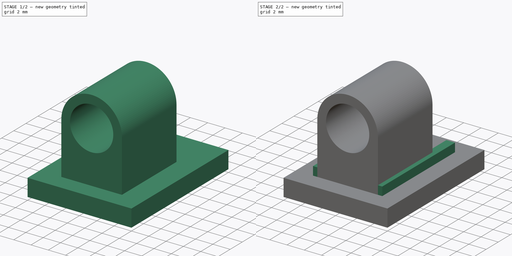
[diagram: build sequence overview — one tinted view per stage of 2, left to right]
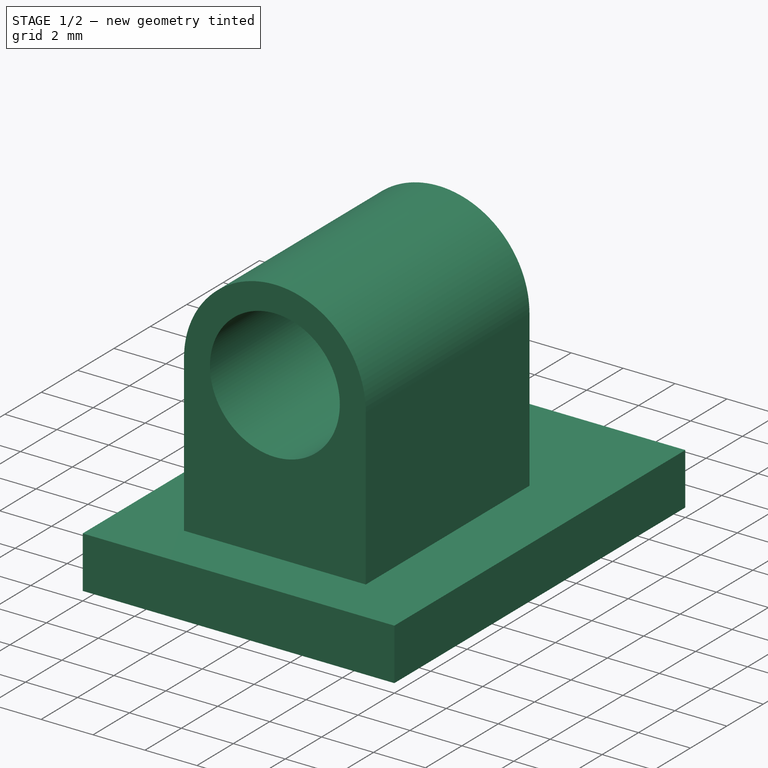
[diagram: stage 1 of 2 — iso view after this stage's code; geometry added in this stage tinted green]
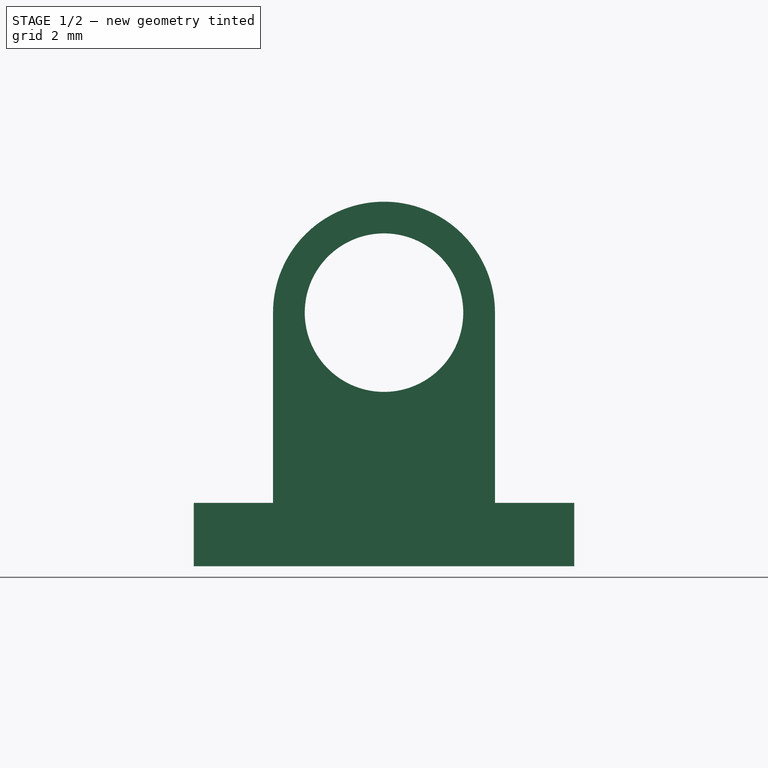
[diagram: stage 1 of 2 — front view after this stage's code; geometry added in this stage tinted green]
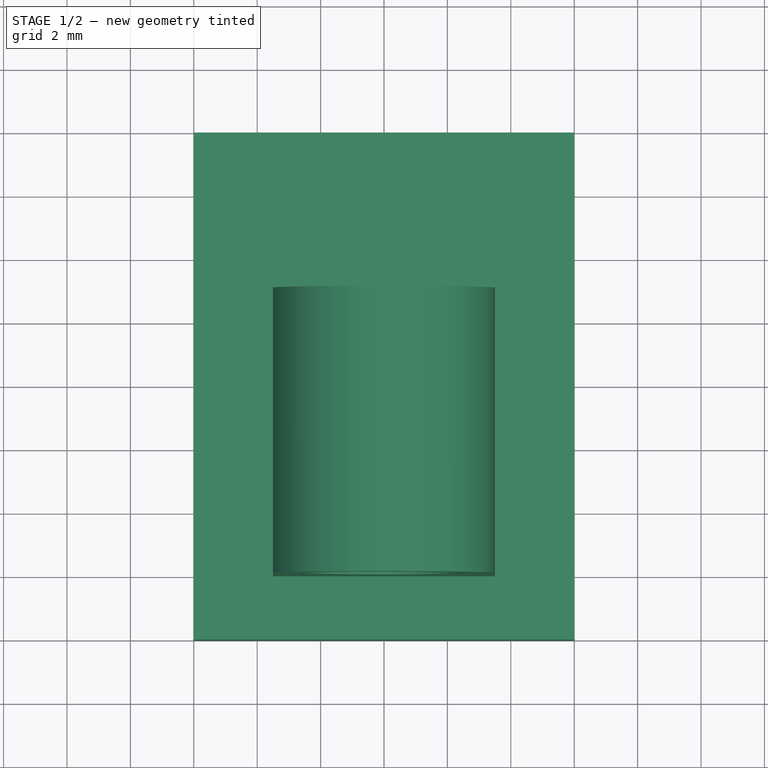
[diagram: stage 1 of 2 — top view after this stage's code; geometry added in this stage tinted green]
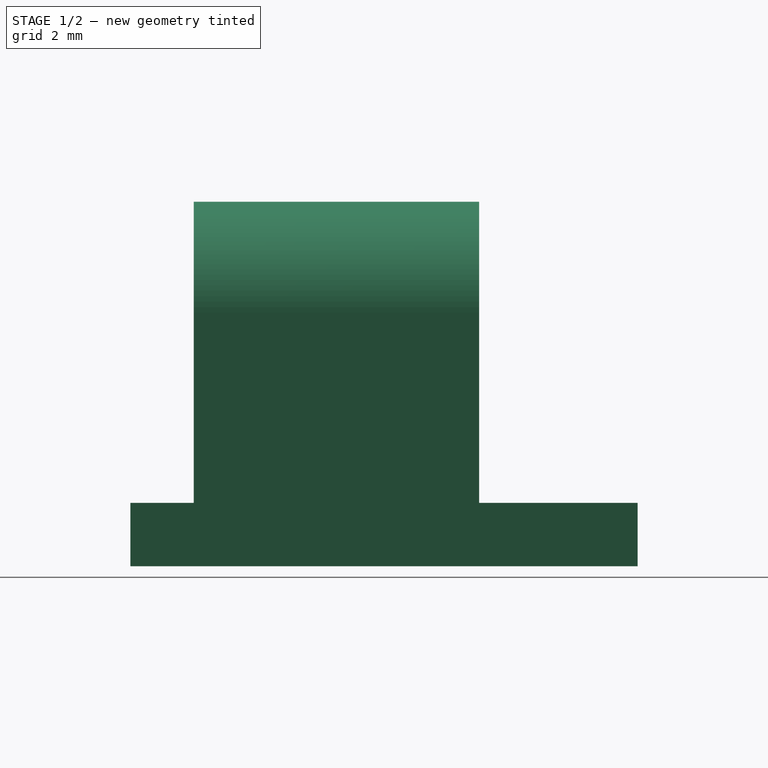
[diagram: stage 1 of 2 — right view after this stage's code; geometry added in this stage tinted green]
FCSTD DOCUMENT  (FreeCAD 0.19R24291 (Git))
Label: FluorometerLEDHolder
License: All rights reserved
LicenseURL: http://en.wikipedia.org/wiki/All_rights_reserved
objects: Sketcher::SketchObject×4, PartDesign::Pad×3, PartDesign::Pocket×1, PartDesign::Body×1
note: 13 computed .brp shape members not serialized (recipe doc carries the construction recipe); baked Part::Feature solids carry a one-line shape summary decoded from their .brp

FEATURE [Sketcher::SketchObject] Sketch
  FullyConstrained = true
  MapMode = 5
  Support = -> [XY_Plane]
  sketch-geometry (4):
    g0: LineSegment StartX=-6 StartY=8 StartZ=0 EndX=6 EndY=8 EndZ=0
    g1: LineSegment StartX=6 StartY=8 StartZ=0 EndX=6 EndY=-8 EndZ=0
    g2: LineSegment StartX=6 StartY=-8 StartZ=0 EndX=-6 EndY=-8 EndZ=0
    g3: LineSegment StartX=-6 StartY=-8 StartZ=0 EndX=-6 EndY=8 EndZ=0
  constraints (12):
    c: Coincident(g0,g1)
    c: Coincident(g1,g2)
    c: Coincident(g2,g3)
    c: Coincident(g3,g0)
    c: Horizontal(g0)
    c: Horizontal(g2)
    c: Vertical(g1)
    c: Vertical(g3)
    c: DistanceY(g1,g0) = 16
    c: DistanceX(g0,g0) = 12
    c: DistanceX(g-1,g0) = 6
    c: DistanceY(g-1,g0) = 8
FEATURE [PartDesign::Pad] Pad
  Direction = (1,1,1)
  Length = 2
  Length2 = 100
  Profile = -> Sketch
  Type = 0
FEATURE [Sketcher::SketchObject] Sketch001
  FullyConstrained = true
  MapMode = 5
  Placement = pos=(0,0,0) rot=(1,0,0;1.5708rad)
  Support = -> [XZ_Plane]
  sketch-geometry (5):
    g0: LineSegment StartX=-3.5 StartY=2 StartZ=0 EndX=-3.5 EndY=8 EndZ=0
    g1: ArcOfCircle CenterX=0 CenterY=8 CenterZ=0 NormalX=0 NormalY=0 NormalZ=1 AngleXU=0 Radius=3.5 StartAngle=3e-16 EndAngle=3.14159
    g2: LineSegment StartX=3.5 StartY=8 StartZ=0 EndX=3.5 EndY=2 EndZ=0
    g3: LineSegment StartX=-3.5 StartY=2 StartZ=0 EndX=3.5 EndY=2 EndZ=0
    g4: Circle CenterX=0 CenterY=8 CenterZ=0 NormalX=0 NormalY=0 NormalZ=1 AngleXU=0 Radius=2.5
  constraints (14):
    c: Vertical(g0)
    c: PointOnObject(g1,g-2)
    c: Coincident(g1,g0)
    c: Vertical(g2)
    c: Coincident(g3,g0)
    c: Coincident(g3,g2)
    c: Horizontal(g3)
    c: DistanceY(g-1,g0) = 2
    c: Coincident(g4,g1)
    c: Radius(g4) = 2.5
    c: DistanceY(g-1,g0) = 8
    c: DistanceY(g-1,g1) = 8
    c: Tangent(g2,g1) = 1.5708
    c: DistanceX(g0,g1) = 7
FEATURE [PartDesign::Pad] Pad001
  BaseFeature = -> Pad
  Direction = (1,1,1)
  Length = 6
  Length2 = 3
  Midplane = true
  Profile = -> Sketch001
  Type = 4
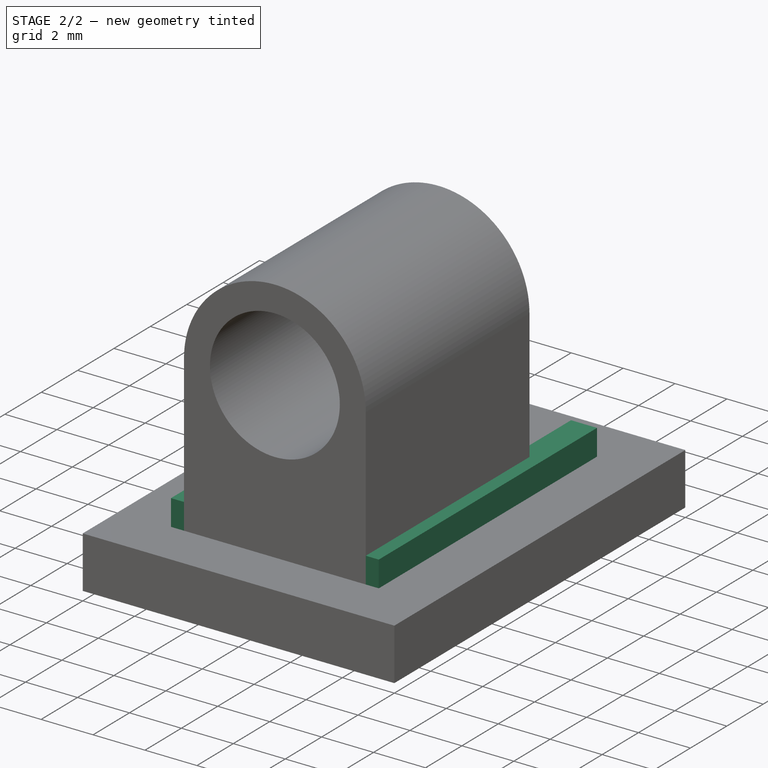
[diagram: stage 2 of 2 — iso view after this stage's code; geometry added in this stage tinted green]
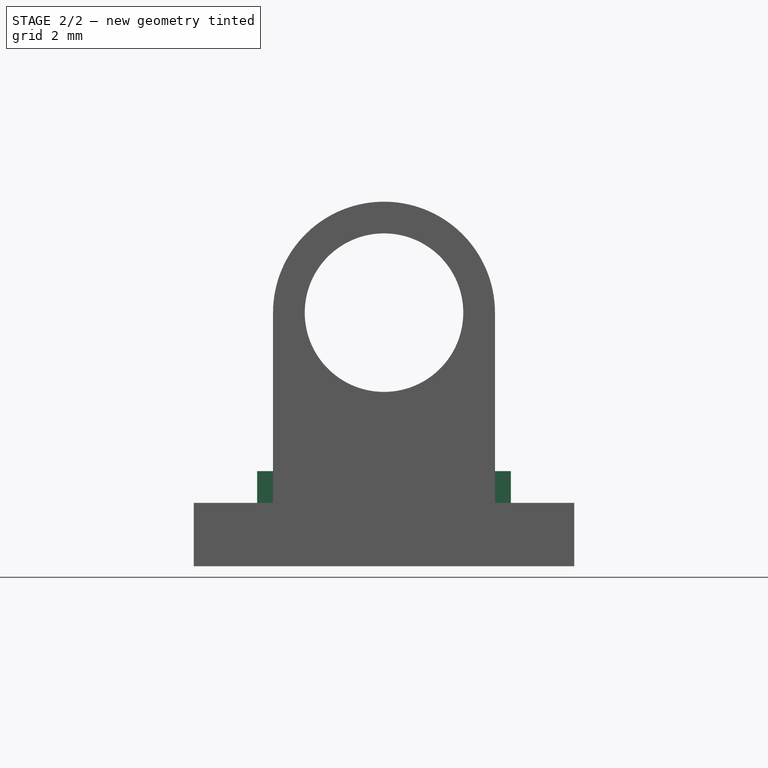
[diagram: stage 2 of 2 — front view after this stage's code; geometry added in this stage tinted green]
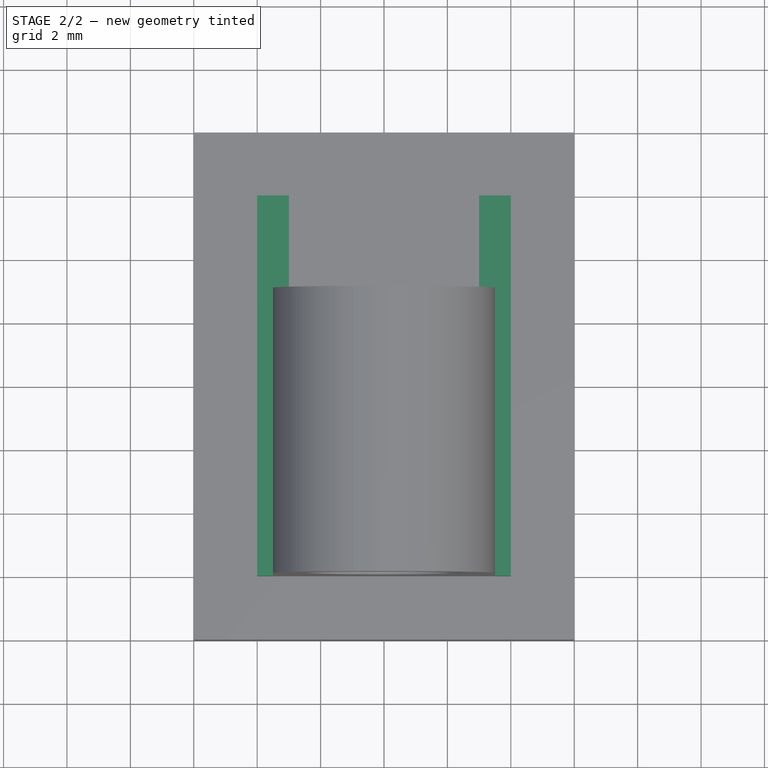
[diagram: stage 2 of 2 — top view after this stage's code; geometry added in this stage tinted green]
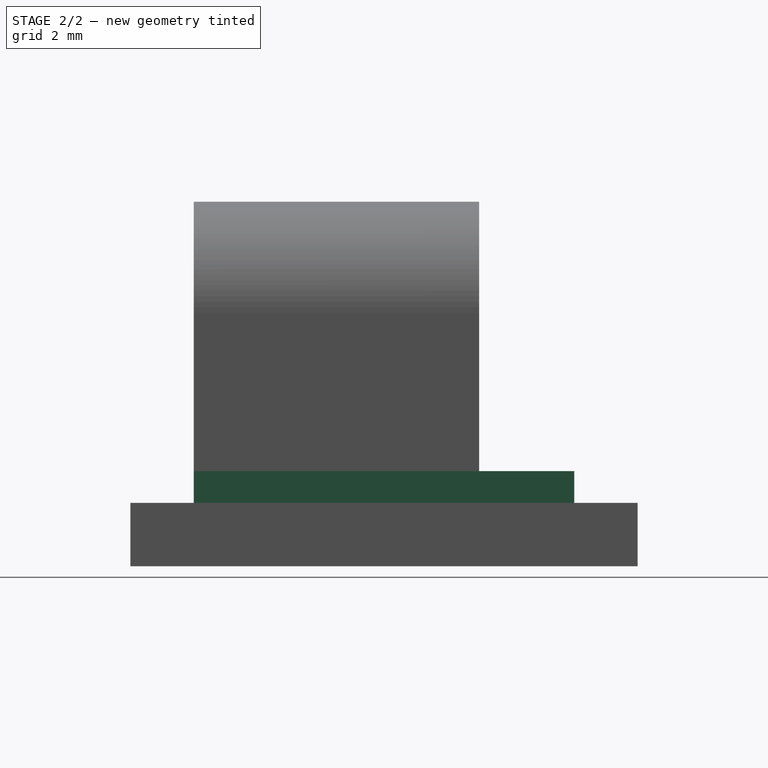
[diagram: stage 2 of 2 — right view after this stage's code; geometry added in this stage tinted green]
FEATURE [Sketcher::SketchObject] Sketch002
  FullyConstrained = true
  MapMode = 5
  Placement = pos=(0,3,-7e-16) rot=(0,0.707107,0.707107;3.14159rad)
  Support = -> [Pad001]
  sketch-geometry (1):
    g0: Circle CenterX=0 CenterY=8 CenterZ=0 NormalX=0 NormalY=0 NormalZ=1 AngleXU=0 Radius=2.95
  constraints (3):
    c: PointOnObject(g0,g-2)
    c: Radius(g0) = 2.95
    c: DistanceY(g-1,g0) = 8
FEATURE [PartDesign::Pocket] Pocket
  BaseFeature = -> Pad001
  Length = 1
  Length2 = 100
  Profile = -> Sketch002
  Type = 0
FEATURE [Sketcher::SketchObject] Sketch003
  FullyConstrained = true
  MapMode = 5
  Placement = pos=(0,0,2) rot=(0,0,1;0rad)
  Support = -> [Pocket]
  sketch-geometry (8):
    g0: LineSegment StartX=-4 StartY=6 StartZ=0 EndX=-3 EndY=6 EndZ=0
    g1: LineSegment StartX=-3 StartY=6 StartZ=0 EndX=-3 EndY=-6 EndZ=0
    g2: LineSegment StartX=-3 StartY=-6 StartZ=0 EndX=-4 EndY=-6 EndZ=0
    g3: LineSegment StartX=-4 StartY=-6 StartZ=0 EndX=-4 EndY=6 EndZ=0
    g4: LineSegment StartX=3 StartY=6 StartZ=0 EndX=4 EndY=6 EndZ=0
    g5: LineSegment StartX=4 StartY=6 StartZ=0 EndX=4 EndY=-6 EndZ=0
    g6: LineSegment StartX=4 StartY=-6 StartZ=0 EndX=3 EndY=-6 EndZ=0
    g7: LineSegment StartX=3 StartY=-6 StartZ=0 EndX=3 EndY=6 EndZ=0
  constraints (24):
    c: Coincident(g1,g2)
    c: Coincident(g2,g3)
    c: Coincident(g3,g0)
    c: Horizontal(g0)
    c: Horizontal(g2)
    c: Vertical(g1)
    c: Vertical(g3)
    c: Coincident(g4,g5)
    c: Coincident(g5,g6)
    c: Coincident(g6,g7)
    c: Horizontal(g4)
    c: Horizontal(g6)
    c: Vertical(g5)
    c: Vertical(g7)
    c: DistanceY(g6,g-1) = 6
    c: DistanceY(g2,g-1) = 6
    c: DistanceY(g-1,g0) = 6
    c: DistanceY(g-1,g4) = 6
    c: DistanceX(g0,g-1) = 4
    c: DistanceX(g0,g-1) = 3
    c: DistanceX(g-1,g4) = 4
    c: DistanceX(g-1,g4) = 3
    c: Coincident(g7,g4)
    c: Coincident(g1,g0)
FEATURE [PartDesign::Pad] Pad002
  BaseFeature = -> Pocket
  Direction = (1,1,1)
  Length = 1
  Length2 = 100
  Profile = -> Sketch003
  Type = 0
FEATURE [PartDesign::Body] Body
  Group = -> [Sketch,Pad,Sketch001,Pad001,Sketch002,Pocket,Sketch003,Pad002]
  Origin = -> Origin
  Tip = -> Pad002
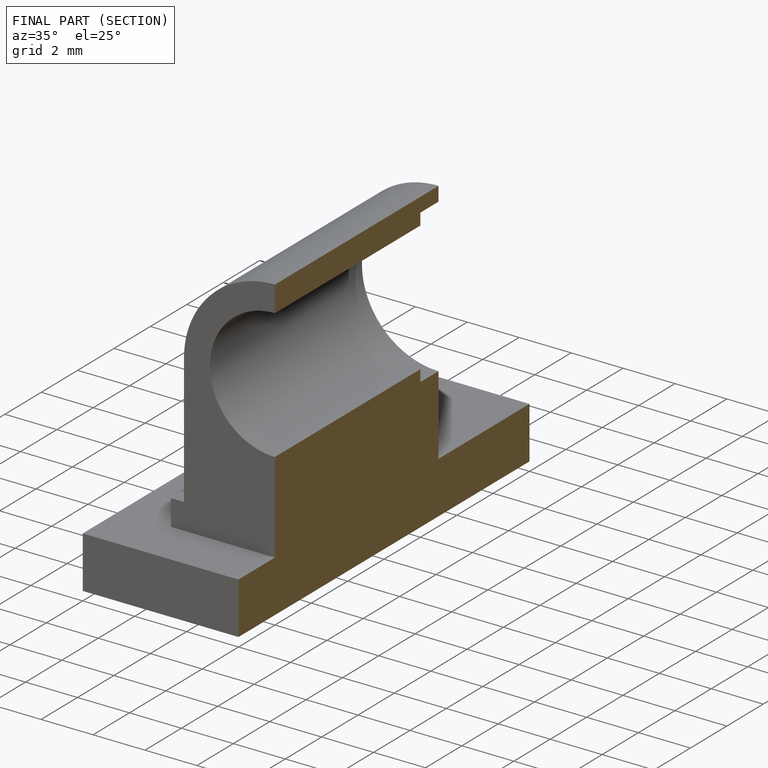
[diagram: finished part — half-section view (interior)]
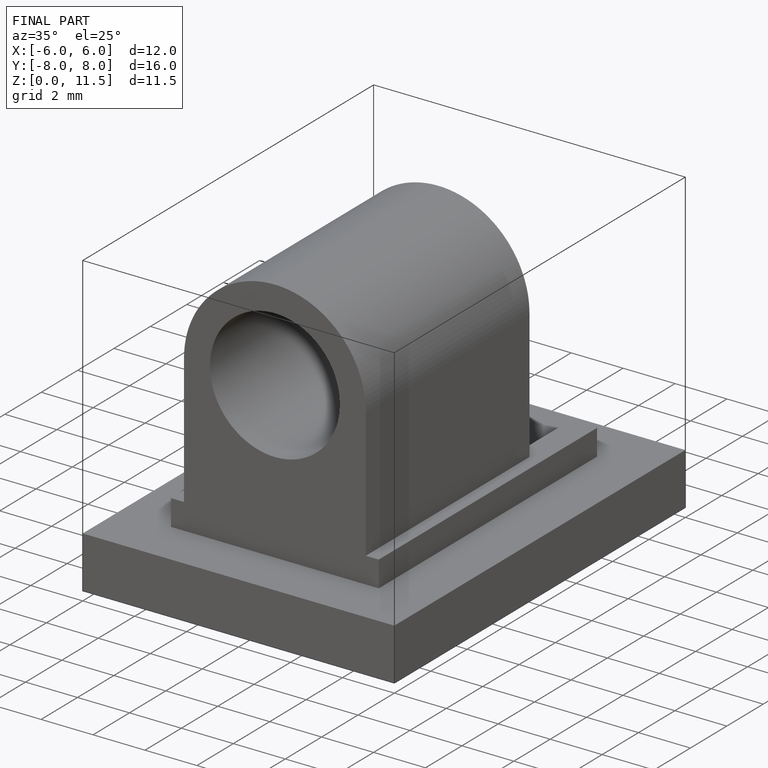
[diagram: finished part — iso view with bounding-box wireframe]
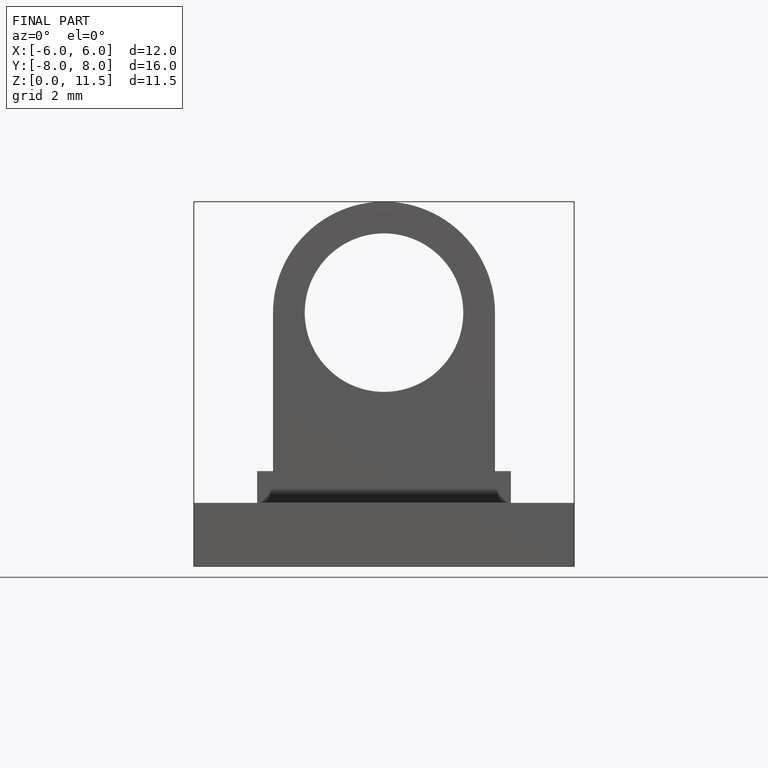
[diagram: finished part — front view with bounding-box wireframe]
